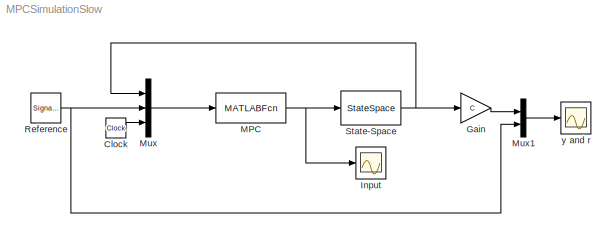
MODEL MPCSimulationSlow
KIND model
BLOCK [Clock] Clock
  SID = 29
BLOCK [Gain] Gain
  Gain = C
  Multiplication = Matrix(K*u)
  OutDataTypeStr = Inherit: Inherit via internal rule
  ParamDataTypeStr = Inherit: Inherit via internal rule
  SID = 30
  SaturateOnIntegerOverflow = off
BLOCK [Scope] Input
  DataFormat = StructureWithTime
  Floating = off
  NumInputPorts = 1
  Ports = [1]
  SID = 31
  SampleTime = 0
  ShowLegends = off
BLOCK [MATLABFcn] MPC
  MATLABFcn = SlowMPCController(u(1:2),u(3),u(4))
  Ports = [1, 1]
  SID = 32
  SampleTime = Ts
BLOCK [Mux] Mux
  DisplayOption = bar
  Inputs = 3
  Ports = [3, 1]
  SID = 27
BLOCK [Mux] Mux1
  DisplayOption = bar
  Inputs = 2
  Ports = [2, 1]
  SID = 33
BLOCK [SignalGenerator] Reference
  Frequency = .25
  Ports = [0, 1]
  SID = 28
  WaveForm = square
BLOCK [StateSpace] State-Space
  A = A
  B = B
  C = eye(2)
  D = zeros(2,1)
  SID = 34
  X0 = x0
BLOCK [Scope] y and r
  DataFormat = StructureWithTime
  Floating = off
  NumInputPorts = 1
  Ports = [1]
  SID = 35
  SampleTime = 0
  SaveName = ScopeData1
  ShowLegends = off
  YMax = 10
  YMin = -180
LINE Clock:1 -> Mux:3
LINE Gain:1 -> Mux1:1
NET MPC:1 -> Input:1, State-Space:1
LINE Mux1:1 -> y and r:1
LINE Mux:1 -> MPC:1
NET Reference:1 -> Mux1:2, Mux:2
NET State-Space:1 -> Gain:1, Mux:1
note: NET lines group one-source signal fan-out (src -> all destinations, sorted); 1:1 wires keep LINE
